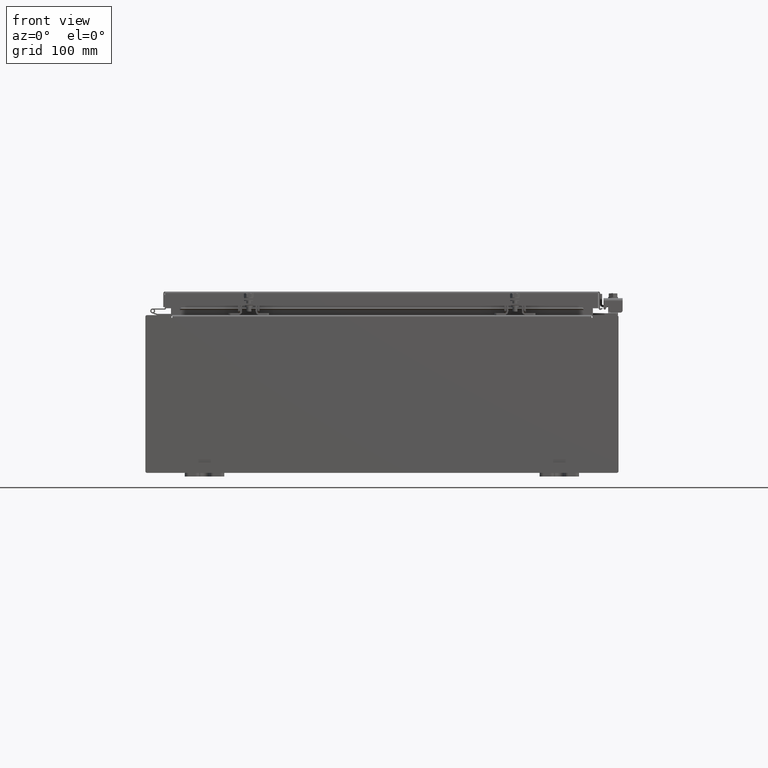
[diagram: clean part render]
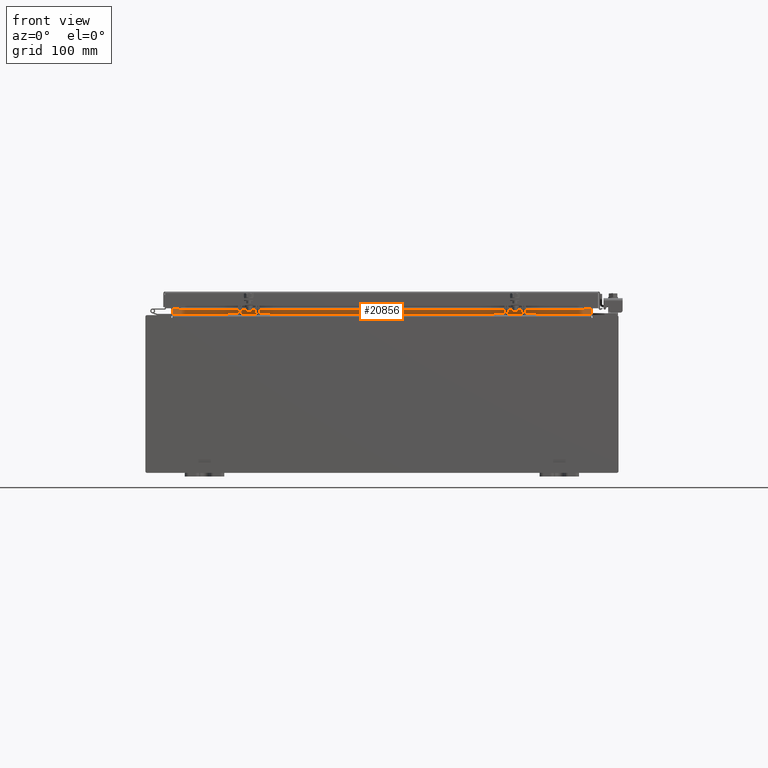
[diagram: same view with one face highlighted and labeled with its STEP entity id]
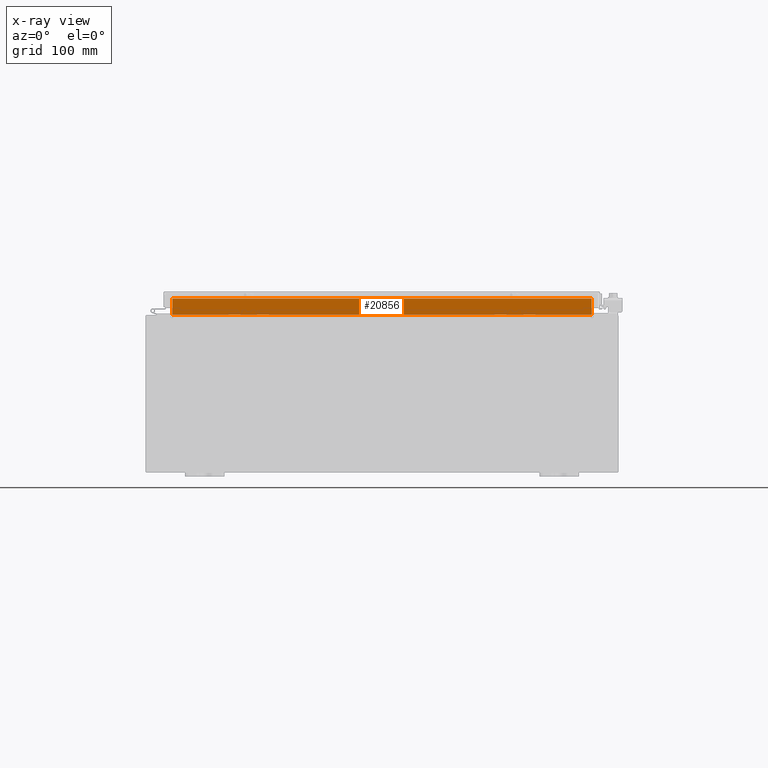
[diagram: x-ray of the same camera — body ghosted, the highlighted face saturated]
A machine part, front view. The second image highlights one B-rep face of the part: STEP entity #20856.
The next image is the same camera in x-ray: the body ghosted, the highlighted face saturated — about 0% of this face is hidden behind the body in this view.
In plain terms, the highlighted planar face has unit normal (0, -1, 0).
Its self-contained STEP definition (entity closure, byte-faithful):
#1938 = DIRECTION ( 'NONE',  ( 0.0000000000000000000, 1.000000000000000000, 0.0000000000000000000 ) ) ;
#3062 = DIRECTION ( 'NONE',  ( -0.0000000000000000000, -0.0000000000000000000, -1.000000000000000000 ) ) ;
#3144 = VECTOR ( 'NONE', #25162, 39.37007874015748100 ) ;
#3943 = ORIENTED_EDGE ( 'NONE', *, *, #21020, .F. ) ;
#4226 = EDGE_LOOP ( 'NONE', ( #26561, #19933, #3943, #24339 ) ) ;
#5574 = VERTEX_POINT ( 'NONE', #12705 ) ;
#6851 = PLANE ( 'NONE',  #17268 ) ;
#7609 = CARTESIAN_POINT ( 'NONE',  ( 10.63720000000000200, -1.300299999999999800, 4.925300000000004500 ) ) ;
#7840 = FACE_OUTER_BOUND ( 'NONE', #4226, .T. ) ;
#9231 = LINE ( 'NONE', #21805, #21776 ) ;
#9617 = EDGE_CURVE ( 'NONE', #28678, #5574, #12180, .T. ) ;
#10377 = CARTESIAN_POINT ( 'NONE',  ( 10.63720000000000400, -1.300299999999999800, 4.013000000000003500 ) ) ;
#10487 = CARTESIAN_POINT ( 'NONE',  ( -10.63720000000000200, -1.300299999999999800, 4.000000000000004400 ) ) ;
#11713 = CARTESIAN_POINT ( 'NONE',  ( 10.63720000000000200, -1.300299999999999800, 4.837600000000003700 ) ) ;
#12180 = LINE ( 'NONE', #10487, #18039 ) ;
#12705 = CARTESIAN_POINT ( 'NONE',  ( -10.63720000000000400, -1.300299999999999800, 4.013000000000003500 ) ) ;
#12851 = CARTESIAN_POINT ( 'NONE',  ( -10.63720000000000200, -1.300299999999999300, 4.837600000000003700 ) ) ;
#14558 = DIRECTION ( 'NONE',  ( -1.000000000000000000, -0.0000000000000000000, -0.0000000000000000000 ) ) ;
#15699 = VECTOR ( 'NONE', #14558, 39.37007874015748100 ) ;
#16894 = CARTESIAN_POINT ( 'NONE',  ( 0.0000000000000000000, -1.300299999999999800, 0.0000000000000000000 ) ) ;
#17003 = EDGE_CURVE ( 'NONE', #22700, #28678, #22389, .T. ) ;
#17268 = AXIS2_PLACEMENT_3D ( 'NONE', #16894, #1938, #19408 ) ;
#18039 = VECTOR ( 'NONE', #3062, 39.37007874015748100 ) ;
#19408 = DIRECTION ( 'NONE',  ( 0.0000000000000000000, -0.0000000000000000000, 1.000000000000000000 ) ) ;
#19933 = ORIENTED_EDGE ( 'NONE', *, *, #17003, .F. ) ;
#20856 = ADVANCED_FACE ( 'NONE', ( #7840 ), #6851, .T. ) ;
#21020 = EDGE_CURVE ( 'NONE', #30359, #22700, #29007, .T. ) ;
#21776 = VECTOR ( 'NONE', #24332, 39.37007874015748100 ) ;
#21805 = CARTESIAN_POINT ( 'NONE',  ( -10.63720000000000200, -1.300299999999999800, 4.013000000000003500 ) ) ;
#22389 = LINE ( 'NONE', #32103, #15699 ) ;
#22700 = VERTEX_POINT ( 'NONE', #11713 ) ;
#24332 = DIRECTION ( 'NONE',  ( 1.000000000000000000, 0.0000000000000000000, -2.568202152506545800E-017 ) ) ;
#24339 = ORIENTED_EDGE ( 'NONE', *, *, #29547, .F. ) ;
#25162 = DIRECTION ( 'NONE',  ( -0.0000000000000000000, -0.0000000000000000000, 1.000000000000000000 ) ) ;
#26561 = ORIENTED_EDGE ( 'NONE', *, *, #9617, .F. ) ;
#28678 = VERTEX_POINT ( 'NONE', #12851 ) ;
#29007 = LINE ( 'NONE', #7609, #3144 ) ;
#29547 = EDGE_CURVE ( 'NONE', #5574, #30359, #9231, .T. ) ;
#30359 = VERTEX_POINT ( 'NONE', #10377 ) ;
#32103 = CARTESIAN_POINT ( 'NONE',  ( 10.63720000000000200, -1.300299999999999300, 4.837600000000003700 ) ) ;